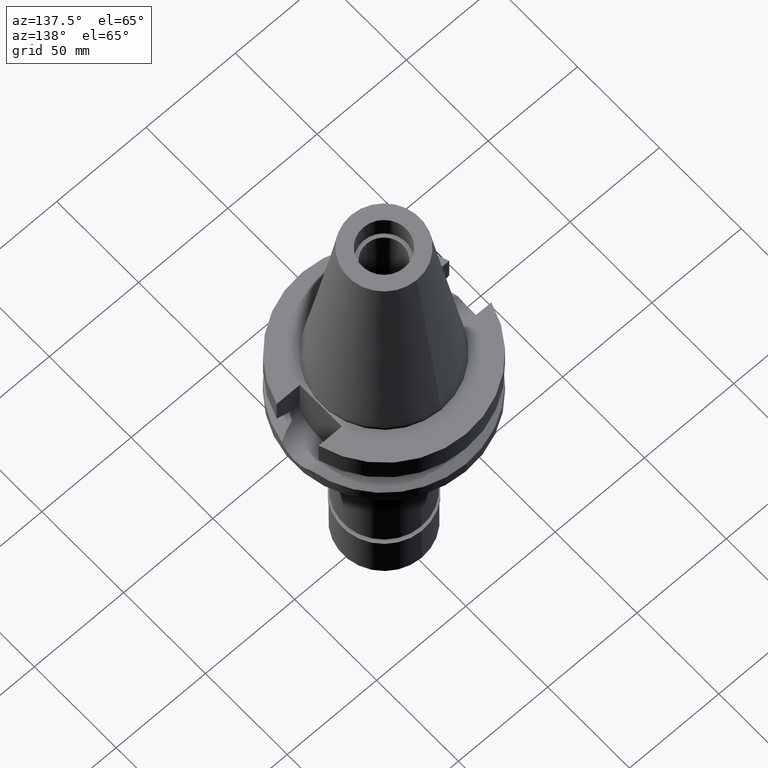
[diagram: clean part render]
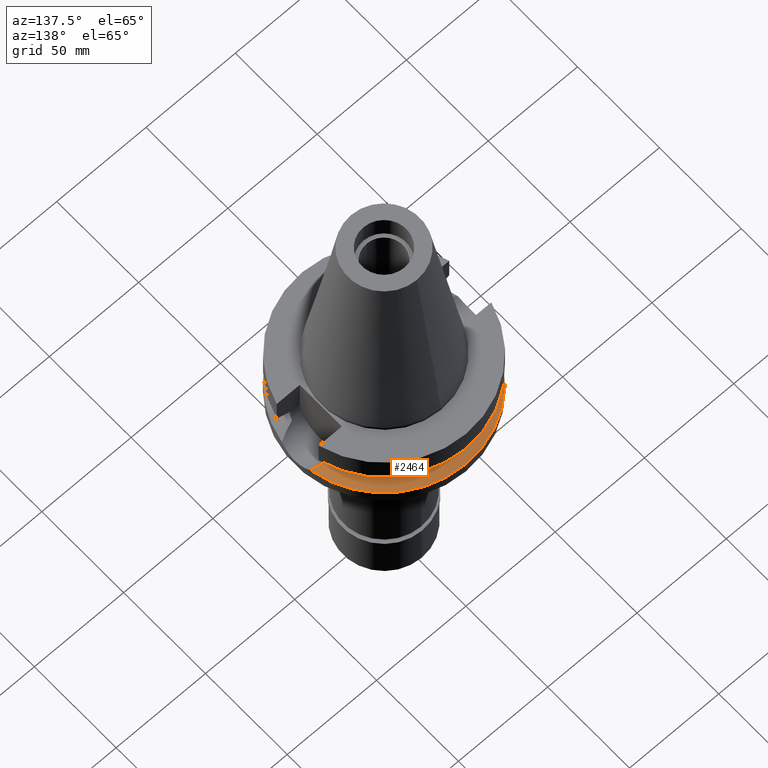
[diagram: same view with one face highlighted and labeled with its STEP entity id]
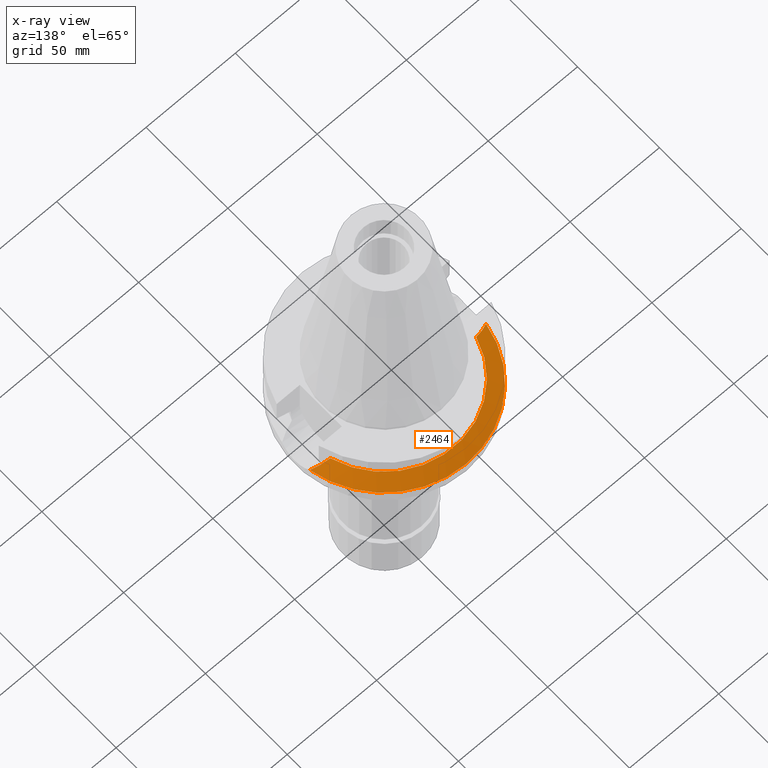
[diagram: x-ray of the same camera — body ghosted, the highlighted face saturated]
A machine part, auxiliary view. The second image highlights one B-rep face of the part: STEP entity #2464.
The next image is the same camera in x-ray: the body ghosted, the highlighted face saturated — about 0% of this face is hidden behind the body in this view.
In plain terms, the highlighted conical surface has half-angle 60 deg.
Its self-contained STEP definition (entity closure, byte-faithful):
#15 = ORIENTED_EDGE ( 'NONE', *, *, #2697, .F. ) ;
#27 = CARTESIAN_POINT ( 'NONE',  ( 46.11277591833500367, 10.07949893709719547, -29.12172667043766339 ) ) ;
#85 = CIRCLE ( 'NONE', #1853, 50.00000000000000000 ) ;
#168 = CIRCLE ( 'NONE', #1322, 50.00000000000000000 ) ;
#192 = CARTESIAN_POINT ( 'NONE',  ( -45.48392019801466546, 10.32611767426507576, -28.79817556229502173 ) ) ;
#203 = EDGE_CURVE ( 'NONE', #562, #2498, #168, .T. ) ;
#205 = B_SPLINE_CURVE_WITH_KNOTS ( 'NONE', 3,
 ( #1832, #888, #872, #1865, #2578, #1609, #3093, #900, #2105, #1878, #192, #376, #1084, #2817 ),
 .UNSPECIFIED., .F., .F.,
 ( 4, 2, 2, 1, 1, 2, 2, 4 ),
 ( 0.0000000000000000000, 0.2499999999999953371, 0.3749999999999932276, 0.4374999999999921729, 0.4687499999999918399, 0.4843749999999914513, 0.4999999999999911182, 1.000000000000000000 ),
 .UNSPECIFIED. ) ;
#262 = EDGE_CURVE ( 'NONE', #1159, #2357, #369, .T. ) ;
#369 = CIRCLE ( 'NONE', #1164, 42.50000000000000000 ) ;
#376 = CARTESIAN_POINT ( 'NONE',  ( -46.93598788123156140, 9.770451391716525436, -29.54497050412715708 ) ) ;
#393 = EDGE_CURVE ( 'NONE', #2357, #562, #205, .T. ) ;
#481 = CARTESIAN_POINT ( 'NONE',  ( 45.52123347353727212, 10.31170083379383762, -28.81756204140183542 ) ) ;
#506 = DIRECTION ( 'NONE',  ( 0.0000000000000000000, 0.0000000000000000000, -1.000000000000000000 ) ) ;
#538 = DIRECTION ( 'NONE',  ( 0.0000000000000000000, -1.000000000000000000, 0.0000000000000000000 ) ) ;
#562 = VERTEX_POINT ( 'NONE', #2653 ) ;
#583 = CONICAL_SURFACE ( 'NONE', #1183, 46.25000000000000000, 1.047197551196400456 ) ;
#775 = CARTESIAN_POINT ( 'NONE',  ( 45.58879720006753189, 10.28577268163592251, -28.85231017621786620 ) ) ;
#786 = DIRECTION ( 'NONE',  ( 0.0000000000000000000, 0.0000000000000000000, 1.000000000000000000 ) ) ;
#790 = CARTESIAN_POINT ( 'NONE',  ( 40.85052569294000335, 11.72538061688000077, -26.40718074535000426 ) ) ;
#819 = CARTESIAN_POINT ( 'NONE',  ( 49.26250064874000145, 8.556052234130000045, -30.73730776426999967 ) ) ;
#872 = CARTESIAN_POINT ( 'NONE',  ( -42.56487491741268059, 11.29547453483568908, -27.29435887455634102 ) ) ;
#888 = CARTESIAN_POINT ( 'NONE',  ( -41.73356981169504110, 11.52031265996931708, -26.86455513736394707 ) ) ;
#900 = CARTESIAN_POINT ( 'NONE',  ( -45.22930424260591309, 10.42205036471056800, -28.66721997510259712 ) ) ;
#960 = CARTESIAN_POINT ( 'NONE',  ( 42.60308498637885322, 11.31838650862535900, -27.31492218687117557 ) ) ;
#966 = ORIENTED_EDGE ( 'NONE', *, *, #2927, .F. ) ;
#1004 = CARTESIAN_POINT ( 'NONE',  ( 47.19304919360507000, 9.615981458835282325, -29.67660830907509961 ) ) ;
#1084 = CARTESIAN_POINT ( 'NONE',  ( -48.18084734780449452, 9.176776232266572464, -30.18335173389997905 ) ) ;
#1159 = VERTEX_POINT ( 'NONE', #790 ) ;
#1164 = AXIS2_PLACEMENT_3D ( 'NONE', #2193, #786, #1244 ) ;
#1165 = CARTESIAN_POINT ( 'NONE',  ( 0.0000000000000000000, 0.0000000000000000000, -30.73730776426999967 ) ) ;
#1183 = AXIS2_PLACEMENT_3D ( 'NONE', #1468, #2244, #538 ) ;
#1244 = DIRECTION ( 'NONE',  ( 0.0000000000000000000, 1.000000000000000000, 0.0000000000000000000 ) ) ;
#1322 = AXIS2_PLACEMENT_3D ( 'NONE', #2681, #506, #1492 ) ;
#1367 = VERTEX_POINT ( 'NONE', #819 ) ;
#1468 = CARTESIAN_POINT ( 'NONE',  ( 0.0000000000000000000, 0.0000000000000000000, -28.57224425480999841 ) ) ;
#1481 = CARTESIAN_POINT ( 'NONE',  ( 48.13362853596357382, 9.173254610323935410, -30.15913395096222160 ) ) ;
#1492 = DIRECTION ( 'NONE',  ( -0.9852500129747439050, 0.1711210446826074982, 0.0000000000000000000 ) ) ;
#1505 = FACE_OUTER_BOUND ( 'NONE', #1804, .T. ) ;
#1569 = ORIENTED_EDGE ( 'NONE', *, *, #393, .F. ) ;
#1609 = CARTESIAN_POINT ( 'NONE',  ( -44.65694265924583561, 10.62860114333064487, -28.37274286106686461 ) ) ;
#1684 = CARTESIAN_POINT ( 'NONE',  ( 49.26250064874000145, 8.556052234130000045, -30.73730776426999967 ) ) ;
#1715 = CARTESIAN_POINT ( 'NONE',  ( 45.80876250439140307, 10.20035405518842175, -28.96542616731460384 ) ) ;
#1748 = CARTESIAN_POINT ( 'NONE',  ( 45.54455138894310551, 10.30277344636882297, -28.82955474111323468 ) ) ;
#1804 = EDGE_LOOP ( 'NONE', ( #2492, #966, #15, #2094, #1569 ) ) ;
#1832 = CARTESIAN_POINT ( 'NONE',  ( -40.85052569294000335, 11.72538061688000077, -26.40718074535000426 ) ) ;
#1853 = AXIS2_PLACEMENT_3D ( 'NONE', #1165, #2149, #2101 ) ;
#1865 = CARTESIAN_POINT ( 'NONE',  ( -43.73422405643300692, 10.93835474855701229, -27.89755460380542473 ) ) ;
#1878 = CARTESIAN_POINT ( 'NONE',  ( -45.44320913517587712, 10.34159016797509523, -28.77723762173904731 ) ) ;
#1985 = CARTESIAN_POINT ( 'NONE',  ( 46.86908660639931412, 9.761022272909468001, -29.51030092688175799 ) ) ;
#2007 = CARTESIAN_POINT ( 'NONE',  ( -40.85052569294000335, 11.72538061688000077, -26.40718074535000426 ) ) ;
#2094 = ORIENTED_EDGE ( 'NONE', *, *, #203, .F. ) ;
#2101 = DIRECTION ( 'NONE',  ( 0.0000000000000000000, 1.000000000000000000, 0.0000000000000000000 ) ) ;
#2105 = CARTESIAN_POINT ( 'NONE',  ( -45.35788970477152304, 10.37381085539385239, -28.73335606953434862 ) ) ;
#2149 = DIRECTION ( 'NONE',  ( 0.0000000000000000000, 0.0000000000000000000, -1.000000000000000000 ) ) ;
#2193 = CARTESIAN_POINT ( 'NONE',  ( 0.0000000000000000000, 0.0000000000000000000, -26.40718074535000426 ) ) ;
#2224 = CARTESIAN_POINT ( 'NONE',  ( 46.36748851596132681, 9.974089361900475126, -29.25262076435071279 ) ) ;
#2244 = DIRECTION ( 'NONE',  ( 0.0000000000000000000, 0.0000000000000000000, -1.000000000000000000 ) ) ;
#2357 = VERTEX_POINT ( 'NONE', #2007 ) ;
#2439 = CARTESIAN_POINT ( 'NONE',  ( 48.71893687185762190, 8.867984976843478861, -30.45892796195106200 ) ) ;
#2464 = ADVANCED_FACE ( 'NONE', ( #1505 ), #583, .T. ) ;
#2469 = CARTESIAN_POINT ( 'NONE',  ( 40.85052569294000335, 11.72538061688000077, -26.40718074535000426 ) ) ;
#2492 = ORIENTED_EDGE ( 'NONE', *, *, #262, .F. ) ;
#2498 = VERTEX_POINT ( 'NONE', #2800 ) ;
#2578 = CARTESIAN_POINT ( 'NONE',  ( -44.11107234951375489, 10.81599443358795654, -28.09171961526828198 ) ) ;
#2653 = CARTESIAN_POINT ( 'NONE',  ( -49.26250064874000145, 8.556052234130000045, -30.73730776426999967 ) ) ;
#2681 = CARTESIAN_POINT ( 'NONE',  ( 0.0000000000000000000, 0.0000000000000000000, -30.73730776426999967 ) ) ;
#2697 = EDGE_CURVE ( 'NONE', #2498, #1367, #85, .T. ) ;
#2722 = B_SPLINE_CURVE_WITH_KNOTS ( 'NONE', 3,
 ( #1684, #2439, #1481, #1004, #1985, #2224, #27, #1715, #2974, #775, #1748, #481, #2736, #960, #2469 ),
 .UNSPECIFIED., .F., .F.,
 ( 4, 2, 2, 1, 1, 1, 2, 2, 4 ),
 ( 0.0000000000000000000, 0.2500000000000244249, 0.3750000000000378031, 0.4375000000000445199, 0.4687500000000469624, 0.4843750000000482392, 0.4921875000000485723, 0.5000000000000489608, 1.000000000000000000 ),
 .UNSPECIFIED. ) ;
#2736 = CARTESIAN_POINT ( 'NONE',  ( 44.15297084850080012, 10.83383774642465802, -28.11382687827022053 ) ) ;
#2800 = CARTESIAN_POINT ( 'NONE',  ( 0.0000000000000000000, 50.00000000000000000, -30.73730776426999967 ) ) ;
#2817 = CARTESIAN_POINT ( 'NONE',  ( -49.26250064874000145, 8.556052234130000045, -30.73730776426999967 ) ) ;
#2927 = EDGE_CURVE ( 'NONE', #1367, #1159, #2722, .T. ) ;
#2974 = CARTESIAN_POINT ( 'NONE',  ( 45.65504361824140744, 10.26023115145371989, -28.88637936063631528 ) ) ;
#3093 = CARTESIAN_POINT ( 'NONE',  ( -44.92502728163958636, 10.53394023751518205, -28.51069978885358580 ) ) ;